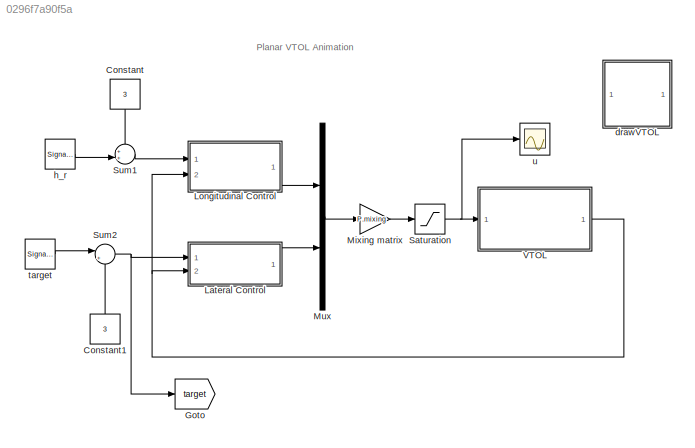
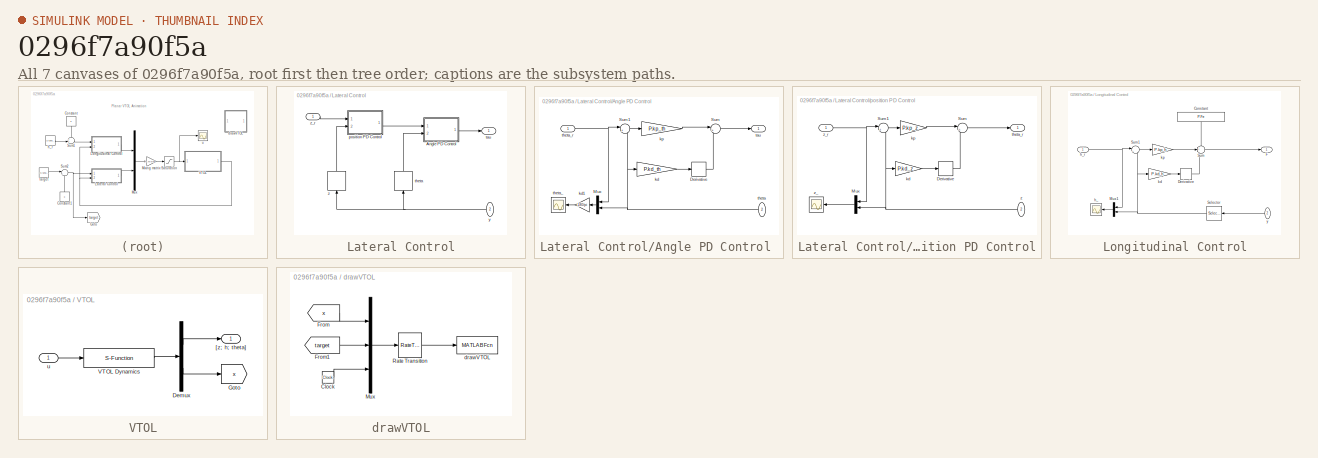
[diagram: thumbnail index - all 7 canvases of the model, root first then tree order]
MODEL slx_0296f7a90f5a
KIND model
CONFIG AbsTol = auto
CONFIG EnableMultiTasking = on
CONFIG FixedStep = auto
CONFIG InitFcn = addpath ./..\nVTOL_param\nVTOLParamHW8
CONFIG MaxStep = auto
CONFIG MinStep = auto
CONFIG RelTol = 1e-3
CONFIG SampleTimeConstraint = Unconstrained
CONFIG Solver = ode45
CONFIG SolverName = ode45
CONFIG StartTime = 0.0
CONFIG StopTime = 100
BLOCK [Constant] Constant
  Value = 3
BLOCK [Constant] Constant1
  Value = 3
BLOCK [Goto] Goto
  GotoTag = target
  TagVisibility = global
BLOCK [SubSystem] Lateral Control
  Ports = [2, 1]
  RequestExecContextInheritance = off
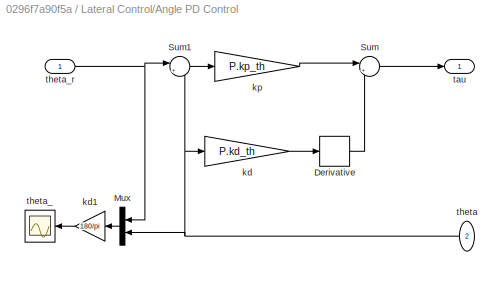
BLOCK [SubSystem] Lateral Control/Angle PD Control 
  Ports = [2, 1]
  RequestExecContextInheritance = off
BLOCK [Derivative] Lateral Control/Angle PD Control /Derivative
BLOCK [Mux] Lateral Control/Angle PD Control /Mux
  DisplayOption = bar
  Inputs = 2
  Ports = [2, 1]
BLOCK [Sum] Lateral Control/Angle PD Control /Sum
  IconShape = round
  InputSameDT = off
  Inputs = |+-
  OutDataTypeStr = Inherit: Inherit via internal rule
  Ports = [2, 1]
  SaturateOnIntegerOverflow = off
BLOCK [Sum] Lateral Control/Angle PD Control /Sum1
  IconShape = round
  InputSameDT = off
  Inputs = |+-
  OutDataTypeStr = Inherit: Inherit via internal rule
  Ports = [2, 1]
  SaturateOnIntegerOverflow = off
BLOCK [Gain] Lateral Control/Angle PD Control /kd
  Gain = P.kd_th
  OutDataTypeStr = Inherit: Inherit via internal rule
  ParamDataTypeStr = Inherit: Inherit via internal rule
  SaturateOnIntegerOverflow = off
BLOCK [Gain] Lateral Control/Angle PD Control /kd1
  Gain = 180/pi
  OutDataTypeStr = Inherit: Inherit via internal rule
  ParamDataTypeStr = Inherit: Inherit via internal rule
  SaturateOnIntegerOverflow = off
BLOCK [Gain] Lateral Control/Angle PD Control /kp
  Gain = P.kp_th
  OutDataTypeStr = Inherit: Inherit via internal rule
  ParamDataTypeStr = Inherit: Inherit via internal rule
  SaturateOnIntegerOverflow = off
BLOCK [Outport] Lateral Control/Angle PD Control /tau
  IconDisplay = Port number
BLOCK [Inport] Lateral Control/Angle PD Control /theta
  IconDisplay = Port number
  Port = 2
BLOCK [Scope] Lateral Control/Angle PD Control /theta_
  Floating = off
  NumInputPorts = 1
  Ports = [1]
  ScopeSpecificationString = Simulink.scopes.TimeScopeBlockCfg('CurrentConfiguration', extmgr.ConfigurationSet(extmgr.Configuration('Core','General UI',true),extmgr.Configuration('Core','Source UI',true),extmgr.Configuration('Sources','WiredSimulink',true,'DataLoggingVariableName','ScopeData1','DataLoggingSaveFormat','StructureWithTime','DataLoggingLimitDataPoints',true,'DataLoggingDecimation','1','DataLoggingDecimateData',tr...<+1806ch>
BLOCK [Inport] Lateral Control/Angle PD Control /theta_r
  IconDisplay = Port number
BLOCK [SubSystem] Lateral Control/position PD Control
  Ports = [2, 1]
  RequestExecContextInheritance = off
BLOCK [Derivative] Lateral Control/position PD Control/Derivative
BLOCK [Mux] Lateral Control/position PD Control/Mux
  DisplayOption = bar
  Inputs = 2
  Ports = [2, 1]
BLOCK [Sum] Lateral Control/position PD Control/Sum
  IconShape = round
  InputSameDT = off
  Inputs = |+-
  OutDataTypeStr = Inherit: Inherit via internal rule
  Ports = [2, 1]
  SaturateOnIntegerOverflow = off
BLOCK [Sum] Lateral Control/position PD Control/Sum1
  IconShape = round
  InputSameDT = off
  Inputs = |+-
  OutDataTypeStr = Inherit: Inherit via internal rule
  Ports = [2, 1]
  SaturateOnIntegerOverflow = off
BLOCK [Gain] Lateral Control/position PD Control/kd
  Gain = P.kd_z
  OutDataTypeStr = Inherit: Inherit via internal rule
  ParamDataTypeStr = Inherit: Inherit via internal rule
  SaturateOnIntegerOverflow = off
BLOCK [Gain] Lateral Control/position PD Control/kp
  Gain = P.kp_z
  OutDataTypeStr = Inherit: Inherit via internal rule
  ParamDataTypeStr = Inherit: Inherit via internal rule
  SaturateOnIntegerOverflow = off
BLOCK [Outport] Lateral Control/position PD Control/theta_r
  IconDisplay = Port number
BLOCK [Inport] Lateral Control/position PD Control/z
  IconDisplay = Port number
  Port = 2
BLOCK [Scope] Lateral Control/position PD Control/z_
  Floating = off
  NumInputPorts = 1
  Ports = [1]
  ScopeSpecificationString = Simulink.scopes.TimeScopeBlockCfg('CurrentConfiguration', extmgr.ConfigurationSet(extmgr.Configuration('Core','General UI',true),extmgr.Configuration('Core','Source UI',true),extmgr.Configuration('Sources','WiredSimulink',true,'DataLoggingVariableName','ScopeData1','DataLoggingSaveFormat','StructureWithTime','DataLoggingLimitDataPoints',true,'DataLoggingDecimation','1','DataLoggingDecimateData',tr...<+1796ch>
BLOCK [Inport] Lateral Control/position PD Control/z_r
  IconDisplay = Port number
BLOCK [Outport] Lateral Control/tau
  IconDisplay = Port number
BLOCK [Selector] Lateral Control/theta
  IndexOptions = Index vector (dialog)
  Indices = [3]
  InputPortWidth = 3
  OutputSizes = 1
  Ports = [1, 1]
BLOCK [Inport] Lateral Control/y
  IconDisplay = Port number
  Port = 2
BLOCK [Selector] Lateral Control/z
  IndexOptions = Index vector (dialog)
  Indices = [1]
  InputPortWidth = 3
  OutputSizes = 1
  Ports = [1, 1]
BLOCK [Inport] Lateral Control/z_r
  IconDisplay = Port number
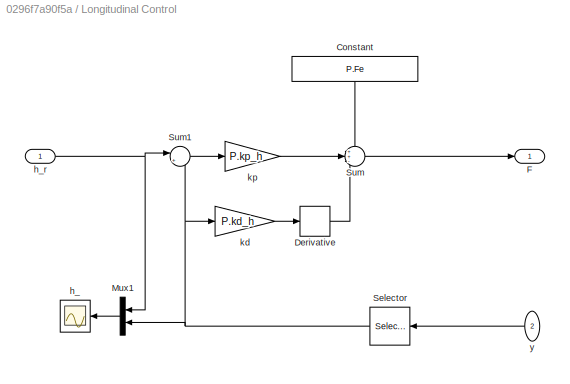
BLOCK [SubSystem] Longitudinal Control
  Ports = [2, 1]
  RequestExecContextInheritance = off
BLOCK [Constant] Longitudinal Control/Constant
  Value = P.Fe
BLOCK [Derivative] Longitudinal Control/Derivative
BLOCK [Outport] Longitudinal Control/F
  IconDisplay = Port number
BLOCK [Mux] Longitudinal Control/Mux1
  DisplayOption = bar
  Inputs = 2
  Ports = [2, 1]
BLOCK [Selector] Longitudinal Control/Selector
  IndexOptions = Index vector (dialog)
  Indices = [2]
  InputPortWidth = 3
  OutputSizes = 1
  Ports = [1, 1]
BLOCK [Sum] Longitudinal Control/Sum
  IconShape = round
  InputSameDT = off
  Inputs = ++-
  OutDataTypeStr = Inherit: Inherit via internal rule
  Ports = [3, 1]
  SaturateOnIntegerOverflow = off
BLOCK [Sum] Longitudinal Control/Sum1
  IconShape = round
  InputSameDT = off
  Inputs = |+-
  OutDataTypeStr = Inherit: Inherit via internal rule
  Ports = [2, 1]
  SaturateOnIntegerOverflow = off
BLOCK [Scope] Longitudinal Control/h_
  Floating = off
  NumInputPorts = 1
  Ports = [1]
  ScopeSpecificationString = Simulink.scopes.TimeScopeBlockCfg('CurrentConfiguration', extmgr.ConfigurationSet(extmgr.Configuration('Core','General UI',true),extmgr.Configuration('Core','Source UI',true),extmgr.Configuration('Sources','WiredSimulink',true,'DataLoggingVariableName','ScopeData1','DataLoggingSaveFormat','StructureWithTime','DataLoggingDecimation','1','DataLoggingDecimateData',true),extmgr.Configuration('Visuals'...<+1771ch>
BLOCK [Inport] Longitudinal Control/h_r
  IconDisplay = Port number
BLOCK [Gain] Longitudinal Control/kd
  Gain = P.kd_h
  OutDataTypeStr = Inherit: Inherit via internal rule
  ParamDataTypeStr = Inherit: Inherit via internal rule
  SaturateOnIntegerOverflow = off
BLOCK [Gain] Longitudinal Control/kp
  Gain = P.kp_h
  OutDataTypeStr = Inherit: Inherit via internal rule
  ParamDataTypeStr = Inherit: Inherit via internal rule
  SaturateOnIntegerOverflow = off
BLOCK [Inport] Longitudinal Control/y
  IconDisplay = Port number
  Port = 2
BLOCK [Gain] Mixing matrix
  Gain = P.mixing
  Multiplication = Matrix(K*u)
  OutDataTypeStr = Inherit: Inherit via internal rule
  ParamDataTypeStr = Inherit: Inherit via internal rule
  SaturateOnIntegerOverflow = off
BLOCK [Mux] Mux
  DisplayOption = bar
  Inputs = 2
  Ports = [2, 1]
BLOCK [Saturate] Saturation
  InputPortMap = u0
  LowerLimit = 0
  Ports = [1, 1]
  UpperLimit = P.fmax
BLOCK [Sum] Sum1
  IconShape = round
  InputSameDT = off
  Inputs = ++|
  OutDataTypeStr = Inherit: Inherit via internal rule
  Ports = [2, 1]
  SaturateOnIntegerOverflow = off
BLOCK [Sum] Sum2
  IconShape = round
  InputSameDT = off
  Inputs = |++
  OutDataTypeStr = Inherit: Inherit via internal rule
  Ports = [2, 1]
  SaturateOnIntegerOverflow = off
BLOCK [SubSystem] VTOL
  Ports = [1, 1]
  RequestExecContextInheritance = off
BLOCK [Demux] VTOL/Demux
  DisplayOption = bar
  Outputs = [3;6]
  Ports = [1, 2]
BLOCK [Goto] VTOL/Goto
  GotoTag = x
  TagVisibility = global
BLOCK [S-Function] VTOL/VTOL Dynamics
  EnableBusSupport = off
  FunctionName = VTOL_dynamics
  Parameters = P
  Ports = [1, 1]
  SFcnIsStateOwnerBlock = off
  SFunctionDeploymentMode = off
BLOCK [Outport] VTOL/[z; h; theta]
  IconDisplay = Port number
BLOCK [Inport] VTOL/u
  IconDisplay = Port number
BLOCK [SubSystem] drawVTOL
  Ports = []
  RequestExecContextInheritance = off
BLOCK [Clock] drawVTOL/Clock
BLOCK [From] drawVTOL/From
  GotoTag = x
  TagVisibility = global
BLOCK [From] drawVTOL/From1
  GotoTag = target
  TagVisibility = global
BLOCK [Mux] drawVTOL/Mux
  DisplayOption = bar
  Inputs = 3
  Ports = [3, 1]
BLOCK [RateTransition] drawVTOL/Rate Transition
  OutPortSampleTime = P.t_plot*10
BLOCK [MATLABFcn] drawVTOL/drawVTOL
  MATLABFcn = VTOL_animation(u,P)
  OutputDimensions = 0
  Ports = [1]
BLOCK [SignalGenerator] h_r
  Amplitude = 2.5
  Frequency = .03
  Ports = [0, 1]
  WaveForm = square
BLOCK [SignalGenerator] target
  Amplitude = 2.5
  Frequency = .02
  Ports = [0, 1]
  WaveForm = square
BLOCK [Scope] u
  Floating = off
  NumInputPorts = 1
  Ports = [1]
  ScopeSpecificationString = Simulink.scopes.TimeScopeBlockCfg('CurrentConfiguration', extmgr.ConfigurationSet(extmgr.Configuration('Core','General UI',true),extmgr.Configuration('Core','Source UI',true),extmgr.Configuration('Sources','WiredSimulink',true,'DataLoggingVariableName','ScopeData1','DataLoggingSaveFormat','StructureWithTime','DataLoggingDecimation','1','DataLoggingDecimateData',true),extmgr.Configuration('Visuals'...<+1732ch>
ANNOTATION (root): Planar VTOL Animation
LINE Constant1:1 -> Sum2:2
LINE Constant:1 -> Sum1:1
LINE Lateral Control/Angle PD Control /Derivative:1 -> Lateral Control/Angle PD Control /Sum:2
LINE Lateral Control/Angle PD Control /Mux:1 -> Lateral Control/Angle PD Control /kd1:1
LINE Lateral Control/Angle PD Control /Sum1:1 -> Lateral Control/Angle PD Control /kp:1
LINE Lateral Control/Angle PD Control /Sum:1 -> Lateral Control/Angle PD Control /tau:1
LINE Lateral Control/Angle PD Control /kd1:1 -> Lateral Control/Angle PD Control /theta_:1
LINE Lateral Control/Angle PD Control /kd:1 -> Lateral Control/Angle PD Control /Derivative:1
LINE Lateral Control/Angle PD Control /kp:1 -> Lateral Control/Angle PD Control /Sum:1
NET Lateral Control/Angle PD Control /theta:1 -> Lateral Control/Angle PD Control /Mux:2, Lateral Control/Angle PD Control /Sum1:2, Lateral Control/Angle PD Control /kd:1
NET Lateral Control/Angle PD Control /theta_r:1 -> Lateral Control/Angle PD Control /Mux:1, Lateral Control/Angle PD Control /Sum1:1
LINE Lateral Control/Angle PD Control :1 -> Lateral Control/tau:1
LINE Lateral Control/position PD Control/Derivative:1 -> Lateral Control/position PD Control/Sum:2
LINE Lateral Control/position PD Control/Mux:1 -> Lateral Control/position PD Control/z_:1
LINE Lateral Control/position PD Control/Sum1:1 -> Lateral Control/position PD Control/kp:1
LINE Lateral Control/position PD Control/Sum:1 -> Lateral Control/position PD Control/theta_r:1
LINE Lateral Control/position PD Control/kd:1 -> Lateral Control/position PD Control/Derivative:1
LINE Lateral Control/position PD Control/kp:1 -> Lateral Control/position PD Control/Sum:1
NET Lateral Control/position PD Control/z:1 -> Lateral Control/position PD Control/Mux:2, Lateral Control/position PD Control/Sum1:2, Lateral Control/position PD Control/kd:1
NET Lateral Control/position PD Control/z_r:1 -> Lateral Control/position PD Control/Mux:1, Lateral Control/position PD Control/Sum1:1
LINE Lateral Control/position PD Control:1 -> Lateral Control/Angle PD Control :1
LINE Lateral Control/theta:1 -> Lateral Control/Angle PD Control :2
NET Lateral Control/y:1 -> Lateral Control/theta:1, Lateral Control/z:1
LINE Lateral Control/z:1 -> Lateral Control/position PD Control:2
LINE Lateral Control/z_r:1 -> Lateral Control/position PD Control:1
LINE Lateral Control:1 -> Mux:2
LINE Longitudinal Control/Constant:1 -> Longitudinal Control/Sum:1
LINE Longitudinal Control/Derivative:1 -> Longitudinal Control/Sum:3
LINE Longitudinal Control/Mux1:1 -> Longitudinal Control/h_:1
NET Longitudinal Control/Selector:1 -> Longitudinal Control/Mux1:2, Longitudinal Control/Sum1:2, Longitudinal Control/kd:1
LINE Longitudinal Control/Sum1:1 -> Longitudinal Control/kp:1
LINE Longitudinal Control/Sum:1 -> Longitudinal Control/F:1
NET Longitudinal Control/h_r:1 -> Longitudinal Control/Mux1:1, Longitudinal Control/Sum1:1
LINE Longitudinal Control/kd:1 -> Longitudinal Control/Derivative:1
LINE Longitudinal Control/kp:1 -> Longitudinal Control/Sum:2
LINE Longitudinal Control/y:1 -> Longitudinal Control/Selector:1
LINE Longitudinal Control:1 -> Mux:1
LINE Mixing matrix:1 -> Saturation:1
LINE Mux:1 -> Mixing matrix:1
NET Saturation:1 -> VTOL:1, u:1
LINE Sum1:1 -> Longitudinal Control:1
NET Sum2:1 -> Goto:1, Lateral Control:1
LINE VTOL/Demux:1 -> VTOL/[z; h; theta]:1
LINE VTOL/Demux:2 -> VTOL/Goto:1
LINE VTOL/VTOL Dynamics:1 -> VTOL/Demux:1
LINE VTOL/u:1 -> VTOL/VTOL Dynamics:1
NET VTOL:1 -> Lateral Control:2, Longitudinal Control:2
LINE drawVTOL/Clock:1 -> drawVTOL/Mux:3
LINE drawVTOL/From1:1 -> drawVTOL/Mux:2
LINE drawVTOL/From:1 -> drawVTOL/Mux:1
LINE drawVTOL/Mux:1 -> drawVTOL/Rate Transition:1
LINE drawVTOL/Rate Transition:1 -> drawVTOL/drawVTOL:1
LINE h_r:1 -> Sum1:2
LINE target:1 -> Sum2:1
note: NET lines group one-source signal fan-out (src -> all destinations, sorted); 1:1 wires keep LINE
